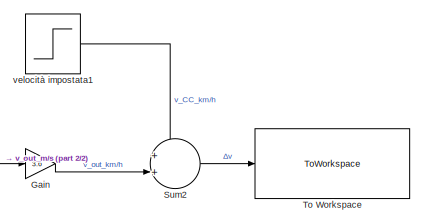
[diagram: root canvas - part 1/2, top right region]
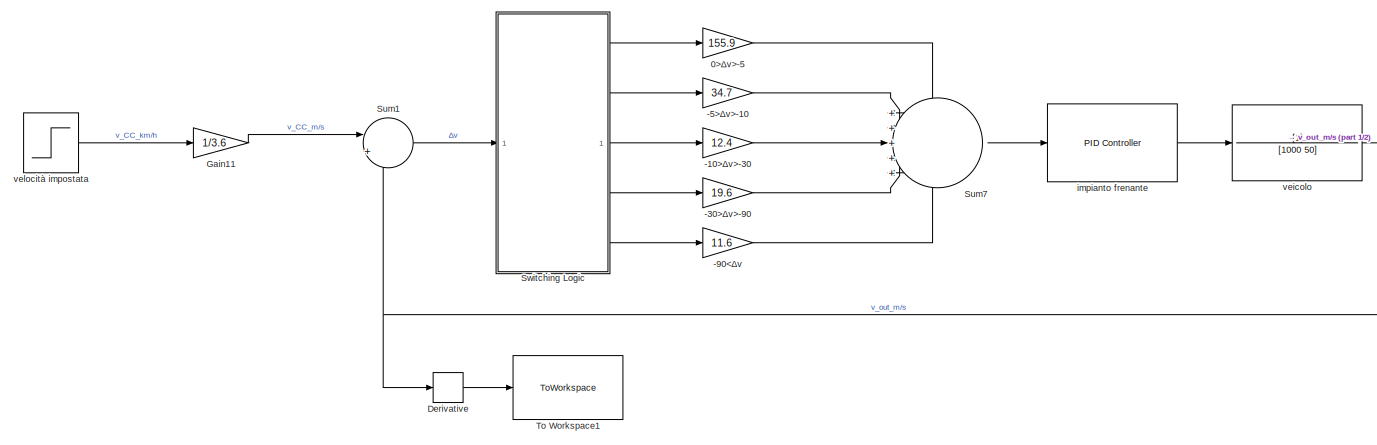
[diagram: root canvas - part 2/2, most of the canvas]
MODEL slx_31238de2c8d6
KIND model
CONFIG AbsTol = auto
CONFIG EnableMultiTasking = off
CONFIG FixedStep = auto
CONFIG MaxStep = auto
CONFIG MinStep = auto
CONFIG RelTol = 1e-3
CONFIG SampleTimeConstraint = Unconstrained
CONFIG SolverName = VariableStepAuto
CONFIG StartTime = -2
CONFIG StopTime = 15
BLOCK [Gain] -10>Δv>-30
  Gain = 12.4
BLOCK [Gain] -30>Δv>-90
  Gain = 19.6
BLOCK [Gain] -5>Δv>-10
  Gain = 34.7
BLOCK [Gain] -90<Δv
  Gain = 11.6
BLOCK [Gain] 0>Δv>-5
  Gain = 155.9
BLOCK [Derivative] Derivative
BLOCK [Gain] Gain
  Gain = 3.6
BLOCK [Gain] Gain11
  Gain = 1/3.6
BLOCK [Sum] Sum1
  Inputs = |+-
BLOCK [Sum] Sum2
  Inputs = ++|
BLOCK [Sum] Sum7
  Inputs = +++++
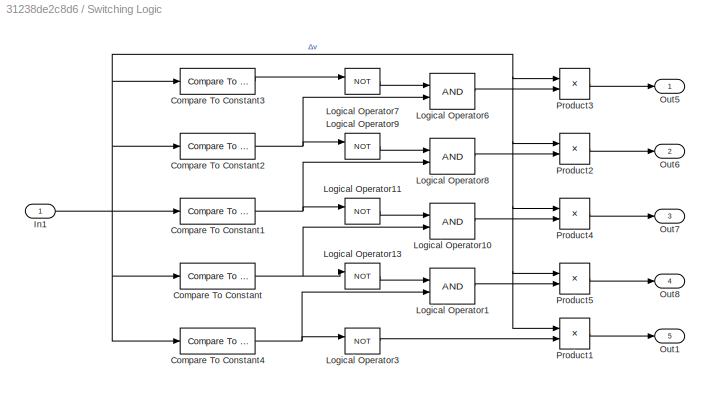
BLOCK [SubSystem] Switching Logic
BLOCK [Reference] Switching Logic/Compare To Constant  REF=simulink/Logic and Bit
Operations/Compare
To Constant
  SourceBlock = simulink/Logic and Bit\nOperations/Compare\nTo Constant
  SourceType = Compare To Constant
BLOCK [Reference] Switching Logic/Compare To Constant1  REF=simulink/Logic and Bit
Operations/Compare
To Constant
  SourceBlock = simulink/Logic and Bit\nOperations/Compare\nTo Constant
  SourceType = Compare To Constant
BLOCK [Reference] Switching Logic/Compare To Constant2  REF=simulink/Logic and Bit
Operations/Compare
To Constant
  SourceBlock = simulink/Logic and Bit\nOperations/Compare\nTo Constant
  SourceType = Compare To Constant
BLOCK [Reference] Switching Logic/Compare To Constant3  REF=simulink/Logic and Bit
Operations/Compare
To Constant
  SourceBlock = simulink/Logic and Bit\nOperations/Compare\nTo Constant
  SourceType = Compare To Constant
BLOCK [Reference] Switching Logic/Compare To Constant4  REF=simulink/Logic and Bit
Operations/Compare
To Constant
  SourceBlock = simulink/Logic and Bit\nOperations/Compare\nTo Constant
  SourceType = Compare To Constant
BLOCK [Inport] Switching Logic/In1
  IconDisplay = Signal name
BLOCK [Logic] Switching Logic/Logical Operator1
  AllPortsSameDT = off
  OutDataTypeStr = boolean
BLOCK [Logic] Switching Logic/Logical Operator10
  AllPortsSameDT = off
  OutDataTypeStr = boolean
BLOCK [Logic] Switching Logic/Logical Operator11
  AllPortsSameDT = off
  Operator = NOT
  OutDataTypeStr = boolean
BLOCK [Logic] Switching Logic/Logical Operator13
  AllPortsSameDT = off
  Operator = NOT
  OutDataTypeStr = boolean
BLOCK [Logic] Switching Logic/Logical Operator3
  AllPortsSameDT = off
  Operator = NOT
  OutDataTypeStr = boolean
BLOCK [Logic] Switching Logic/Logical Operator6
  AllPortsSameDT = off
  OutDataTypeStr = boolean
BLOCK [Logic] Switching Logic/Logical Operator7
  AllPortsSameDT = off
  Operator = NOT
  OutDataTypeStr = boolean
BLOCK [Logic] Switching Logic/Logical Operator8
  AllPortsSameDT = off
  OutDataTypeStr = boolean
BLOCK [Logic] Switching Logic/Logical Operator9
  AllPortsSameDT = off
  Operator = NOT
  OutDataTypeStr = boolean
BLOCK [Outport] Switching Logic/Out1
  Port = 5
BLOCK [Outport] Switching Logic/Out5
BLOCK [Outport] Switching Logic/Out6
  Port = 2
BLOCK [Outport] Switching Logic/Out7
  Port = 3
BLOCK [Outport] Switching Logic/Out8
  Port = 4
BLOCK [Product] Switching Logic/Product1
BLOCK [Product] Switching Logic/Product2
BLOCK [Product] Switching Logic/Product3
BLOCK [Product] Switching Logic/Product4
BLOCK [Product] Switching Logic/Product5
BLOCK [ToWorkspace] To Workspace
  FixptAsFi = on
  MaxDataPoints = inf
  SampleTime = -1
  VariableName = velocit
BLOCK [ToWorkspace] To Workspace1
  FixptAsFi = on
  MaxDataPoints = inf
  SampleTime = -1
  VariableName = accelerazione
BLOCK [Reference] impianto frenante  REF=slpidlib/PID Controller
  SourceBlock = slpidlib/PID Controller
  SourceType = PID 1dof
BLOCK [TransferFcn] veicolo
  Denominator = [1000 50]
BLOCK [Step] velocità impostata
  After = -90
  SampleTime = 0.001
  Time = 0
BLOCK [Step] velocità impostata1
  After = 90
  SampleTime = 0.0001
  Time = -2
LINE -10>Δv>-30:1 -> Sum7:3
LINE -30>Δv>-90:1 -> Sum7:4
LINE -5>Δv>-10:1 -> Sum7:2
LINE -90<Δv:1 -> Sum7:5
LINE 0>Δv>-5:1 -> Sum7:1
LINE Derivative:1 -> To Workspace1:1
LINE Gain11:1 -> Sum1:1
LINE Gain:1 -> Sum2:2
LINE Sum1:1 -> Switching Logic:1
LINE Sum2:1 -> To Workspace:1
LINE Sum7:1 -> impianto frenante:1
NET Switching Logic/Compare To Constant1:1 -> Switching Logic/Logical Operator11:1, Switching Logic/Logical Operator8:2
NET Switching Logic/Compare To Constant2:1 -> Switching Logic/Logical Operator6:2, Switching Logic/Logical Operator9:1
LINE Switching Logic/Compare To Constant3:1 -> Switching Logic/Logical Operator7:1
NET Switching Logic/Compare To Constant4:1 -> Switching Logic/Logical Operator1:2, Switching Logic/Logical Operator3:1
NET Switching Logic/Compare To Constant:1 -> Switching Logic/Logical Operator10:2, Switching Logic/Logical Operator13:1
NET Switching Logic/In1:1 -> Switching Logic/Compare To Constant1:1, Switching Logic/Compare To Constant2:1, Switching Logic/Compare To Constant3:1, Switching Logic/Compare To Constant4:1, Switching Logic/Compare To Constant:1, Switching Logic/Product1:1, Switching Logic/Product2:1, Switching Logic/Product3:1, Switching Logic/Product4:1, Switching Logic/Product5:1
LINE Switching Logic/Logical Operator10:1 -> Switching Logic/Product4:2
LINE Switching Logic/Logical Operator11:1 -> Switching Logic/Logical Operator10:1
LINE Switching Logic/Logical Operator13:1 -> Switching Logic/Logical Operator1:1
LINE Switching Logic/Logical Operator1:1 -> Switching Logic/Product5:2
LINE Switching Logic/Logical Operator3:1 -> Switching Logic/Product1:2
LINE Switching Logic/Logical Operator6:1 -> Switching Logic/Product3:2
LINE Switching Logic/Logical Operator7:1 -> Switching Logic/Logical Operator6:1
LINE Switching Logic/Logical Operator8:1 -> Switching Logic/Product2:2
LINE Switching Logic/Logical Operator9:1 -> Switching Logic/Logical Operator8:1
LINE Switching Logic/Product1:1 -> Switching Logic/Out1:1
LINE Switching Logic/Product2:1 -> Switching Logic/Out6:1
LINE Switching Logic/Product3:1 -> Switching Logic/Out5:1
LINE Switching Logic/Product4:1 -> Switching Logic/Out7:1
LINE Switching Logic/Product5:1 -> Switching Logic/Out8:1
LINE Switching Logic:1 -> 0>Δv>-5:1
LINE Switching Logic:2 -> -5>Δv>-10:1
LINE Switching Logic:3 -> -10>Δv>-30:1
LINE Switching Logic:4 -> -30>Δv>-90:1
LINE Switching Logic:5 -> -90<Δv:1
LINE impianto frenante:1 -> veicolo:1
NET veicolo:1 -> Derivative:1, Gain:1, Sum1:2
LINE velocità impostata1:1 -> Sum2:1
LINE velocità impostata:1 -> Gain11:1
note: NET lines group one-source signal fan-out (src -> all destinations, sorted); 1:1 wires keep LINE
